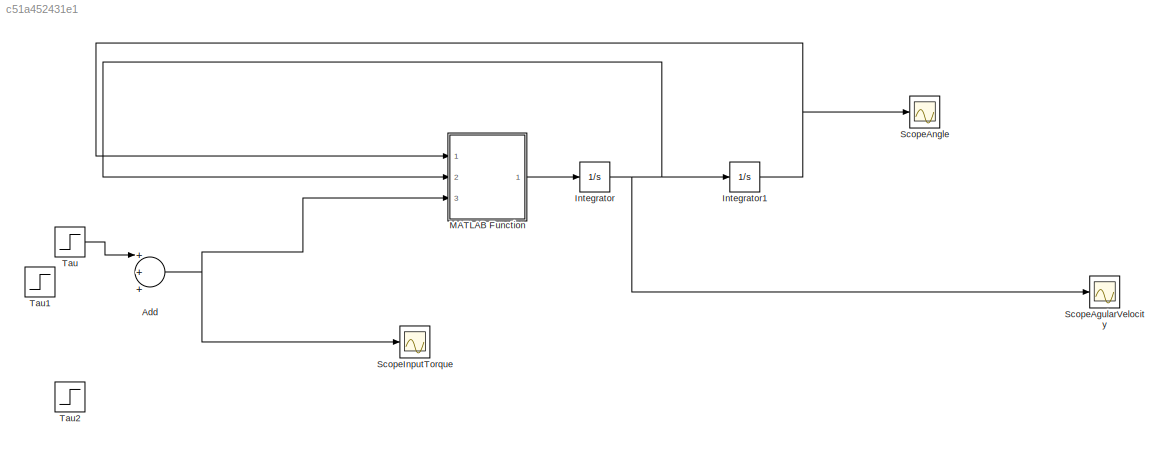
MODEL slx_c51a452431e1
KIND model
BLOCK [Sum] Add
  InputSameDT = off
  Inputs = +++
  OutDataTypeStr = Inherit: Inherit via internal rule
  Ports = [3, 1]
  SaturateOnIntegerOverflow = off
BLOCK [Integrator] Integrator
  InitialCondition = [0 0 0]
  Ports = [1, 1]
BLOCK [Integrator] Integrator1
  InitialCondition = [0 pi 0.1]
  Ports = [1, 1]
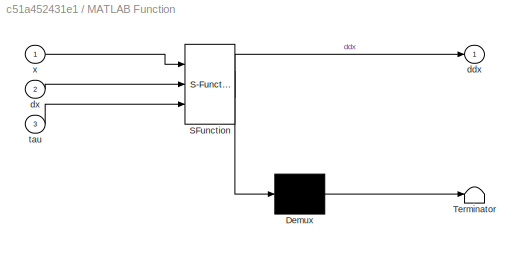
BLOCK [SubSystem] MATLAB Function
  ErrorFcn = Stateflow.Translate.translate
  PermitHierarchicalResolution = ExplicitOnly
  Ports = [3, 1]
  RequestExecContextInheritance = off
  SFBlockType = MATLAB Function
  TreatAsAtomicUnit = on
BLOCK [Demux] MATLAB Function/ Demux 
  Outputs = 1
  Ports = [1, 1]
BLOCK [S-Function] MATLAB Function/ SFunction 
  EnableBusSupport = on
  FunctionName = sf_sfun
  PortCounts = [3 2]
  Ports = [3, 2]
  Tag = Stateflow S-Function NonLinear_Model 2
BLOCK [Terminator] MATLAB Function/ Terminator 
BLOCK [Outport] MATLAB Function/ddx
  IconDisplay = Port number
BLOCK [Inport] MATLAB Function/dx
  IconDisplay = Port number
  Port = 2
BLOCK [Inport] MATLAB Function/tau
  IconDisplay = Port number
  Port = 3
BLOCK [Inport] MATLAB Function/x
  IconDisplay = Port number
BLOCK [Scope] ScopeAgularVelocity
  Floating = off
  NumInputPorts = 1
  Ports = [1]
  SaveName = jointVelocity
  SaveToWorkspace = on
  ShowLegends = off
BLOCK [Scope] ScopeAngle
  Floating = off
  NumInputPorts = 1
  Ports = [1]
  SaveName = jointVelocity1
  SaveToWorkspace = on
  ShowLegends = off
BLOCK [Scope] ScopeInputTorque
  Floating = off
  NumInputPorts = 1
  Ports = [1]
  SaveName = jointVelocity2
  SaveToWorkspace = on
  ShowLegends = off
BLOCK [Step] Tau
  After = [0 0 0]
  Before = [0 1 0]
  SampleTime = 0
BLOCK [Step] Tau1
  After = [-0.1 0 0]
  Before = [0 0 0]
  SampleTime = 0
  Time = 80
BLOCK [Step] Tau2
  After = [0.1 0 0]
  Before = [0 0 0]
  SampleTime = 0
  Time = 81
NET Add:1 -> MATLAB Function:3, ScopeInputTorque:1
NET Integrator1:1 -> MATLAB Function:1, ScopeAngle:1
NET Integrator:1 -> Integrator1:1, MATLAB Function:2, ScopeAgularVelocity:1
LINE MATLAB Function:1 -> Integrator:1
LINE Tau:1 -> Add:1
note: NET lines group one-source signal fan-out (src -> all destinations, sorted); 1:1 wires keep LINE
CHART MATLAB Function states=1 transitions=1
  STATE_LABEL 'eML_blk_kernel()'
  STATE_LABEL 'SCRIPT:\nfunction ddx = fcn(x,dx,tau)\n%getting the state spacemodel of the system\n%give real values to the angles and the angular velocities\n\n%giving some random data for M, L, I\nL1=1.25;\nL2=1.04;\nL3=1.4;\nM1=0.91; M2=0.61; M3=0.4;\nI1x=1.1; I1y=1.2;I1z=1.3;\nI2x=1; I2y=1.1; I2z=1.2;\nI3x=1.2; I3y=1; I3z=1.1;\ng=9.8;\n\n\nq1=x(1);\nq2=x(2);\nq3=x(3);\n\ndq1=dx(1);\ndq2=dx(2);\ndq3=dx(3);\n\nM=[ I1z + cos(q2)*(sin(...<+3608ch>'
